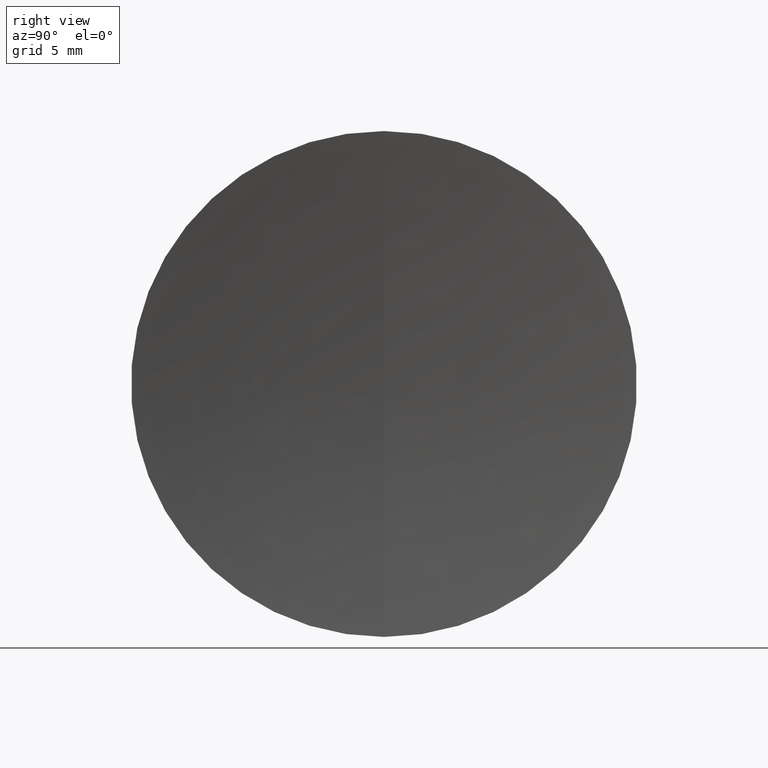
[diagram: clean part render]
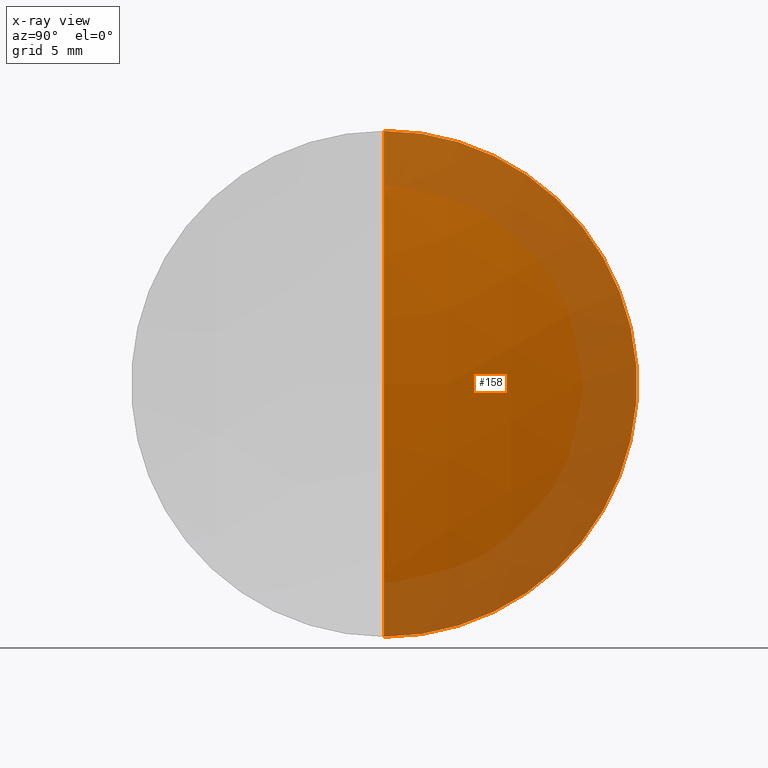
[diagram: x-ray — body ghosted, one internal face saturated and labeled with its STEP entity id]
A machine part, right view, then the same camera in x-ray: the body is ghosted and one INTERNAL B-rep face — a face not visible from any outside direction — is saturated and labeled: STEP entity #158.
In plain terms, the highlighted spherical surface has radius 57.68 mm.
Its self-contained STEP definition (entity closure, byte-faithful):
#1 = SPHERICAL_SURFACE ( 'NONE', #331, 57.68000000000023400 ) ;
#3 = VERTEX_POINT ( 'NONE', #249 ) ;
#8 = CARTESIAN_POINT ( 'NONE',  ( 58.98864538849122100, 0.0000000000000000000, 12.69999999999999600 ) ) ;
#20 = ORIENTED_EDGE ( 'NONE', *, *, #256, .F. ) ;
#36 = DIRECTION ( 'NONE',  ( 0.0000000000000000000, -1.224646799147353000E-016, 1.000000000000000000 ) ) ;
#43 = EDGE_LOOP ( 'NONE', ( #276, #301, #20 ) ) ;
#44 = AXIS2_PLACEMENT_3D ( 'NONE', #244, #81, #133 ) ;
#61 = AXIS2_PLACEMENT_3D ( 'NONE', #182, #131, #36 ) ;
#63 = AXIS2_PLACEMENT_3D ( 'NONE', #317, #157, #117 ) ;
#73 = VERTEX_POINT ( 'NONE', #8 ) ;
#81 = DIRECTION ( 'NONE',  ( -1.000000000000000000, -0.0000000000000000000, -0.0000000000000000000 ) ) ;
#117 = DIRECTION ( 'NONE',  ( 0.0000000000000000000, 0.0000000000000000000, -1.000000000000000000 ) ) ;
#118 = CIRCLE ( 'NONE', #44, 12.69999999999999600 ) ;
#122 = CIRCLE ( 'NONE', #61, 57.68000000000023400 ) ;
#131 = DIRECTION ( 'NONE',  ( -0.0000000000000000000, 1.000000000000000000, 1.224646799147353200E-016 ) ) ;
#133 = DIRECTION ( 'NONE',  ( 0.0000000000000000000, 0.0000000000000000000, 1.000000000000000000 ) ) ;
#134 = VERTEX_POINT ( 'NONE', #343 ) ;
#135 = DIRECTION ( 'NONE',  ( 0.0000000000000000000, 1.000000000000000000, 0.0000000000000000000 ) ) ;
#152 = CIRCLE ( 'NONE', #63, 57.68000000000023400 ) ;
#157 = DIRECTION ( 'NONE',  ( 0.0000000000000000000, -1.000000000000000000, 0.0000000000000000000 ) ) ;
#158 = ADVANCED_FACE ( 'NONE', ( #309 ), #1, .T. ) ;
#162 = DIRECTION ( 'NONE',  ( 0.0000000000000000000, 0.0000000000000000000, 1.000000000000000000 ) ) ;
#168 = EDGE_CURVE ( 'NONE', #134, #73, #152, .T. ) ;
#182 = CARTESIAN_POINT ( 'NONE',  ( 2.724159253807425500, 0.0000000000000000000, -3.657587758717472300E-014 ) ) ;
#208 = CARTESIAN_POINT ( 'NONE',  ( 2.724159253807425500, 0.0000000000000000000, -3.657587758717472300E-014 ) ) ;
#244 = CARTESIAN_POINT ( 'NONE',  ( 58.98864538849122100, 0.0000000000000000000, 0.0000000000000000000 ) ) ;
#249 = CARTESIAN_POINT ( 'NONE',  ( 58.98864538849122100, 1.555301434917138000E-015, -12.69999999999999600 ) ) ;
#256 = EDGE_CURVE ( 'NONE', #73, #3, #118, .T. ) ;
#276 = ORIENTED_EDGE ( 'NONE', *, *, #168, .F. ) ;
#301 = ORIENTED_EDGE ( 'NONE', *, *, #312, .T. ) ;
#309 = FACE_OUTER_BOUND ( 'NONE', #43, .T. ) ;
#312 = EDGE_CURVE ( 'NONE', #134, #3, #122, .T. ) ;
#317 = CARTESIAN_POINT ( 'NONE',  ( 2.724159253807425500, 0.0000000000000000000, -3.657587758717472300E-014 ) ) ;
#331 = AXIS2_PLACEMENT_3D ( 'NONE', #208, #135, #162 ) ;
#343 = CARTESIAN_POINT ( 'NONE',  ( 60.40415925380765600, 0.0000000000000000000, -3.304399621843373900E-014 ) ) ;